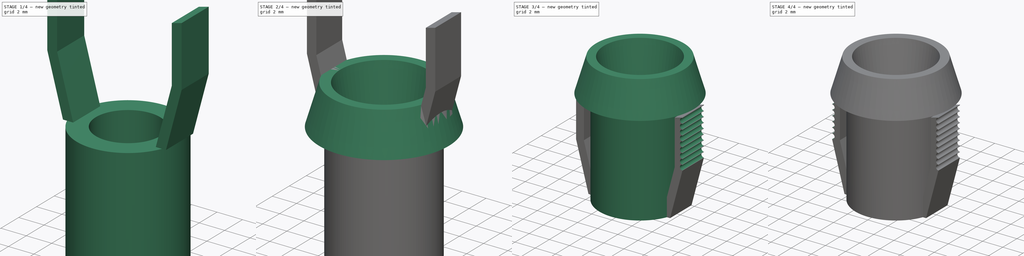
[diagram: build sequence overview — one tinted view per stage of 4, left to right]
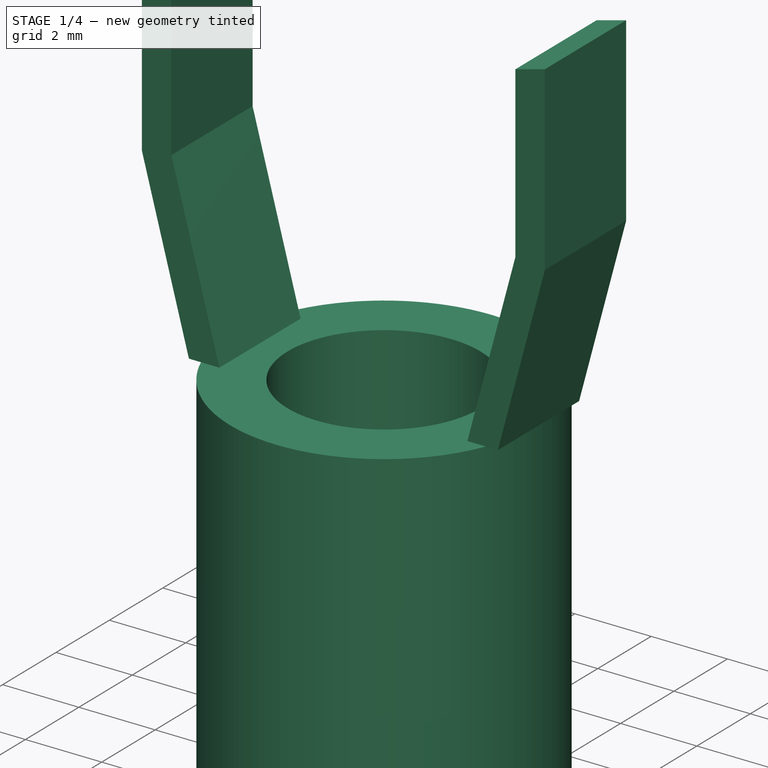
[diagram: stage 1 of 4 — iso view after this stage's code; geometry added in this stage tinted green]
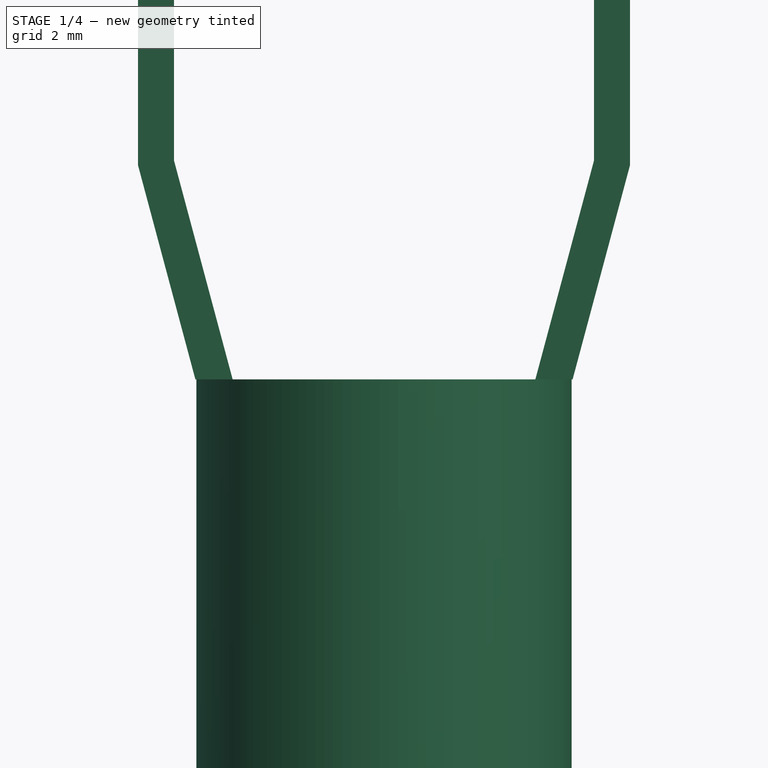
[diagram: stage 1 of 4 — front view after this stage's code; geometry added in this stage tinted green]
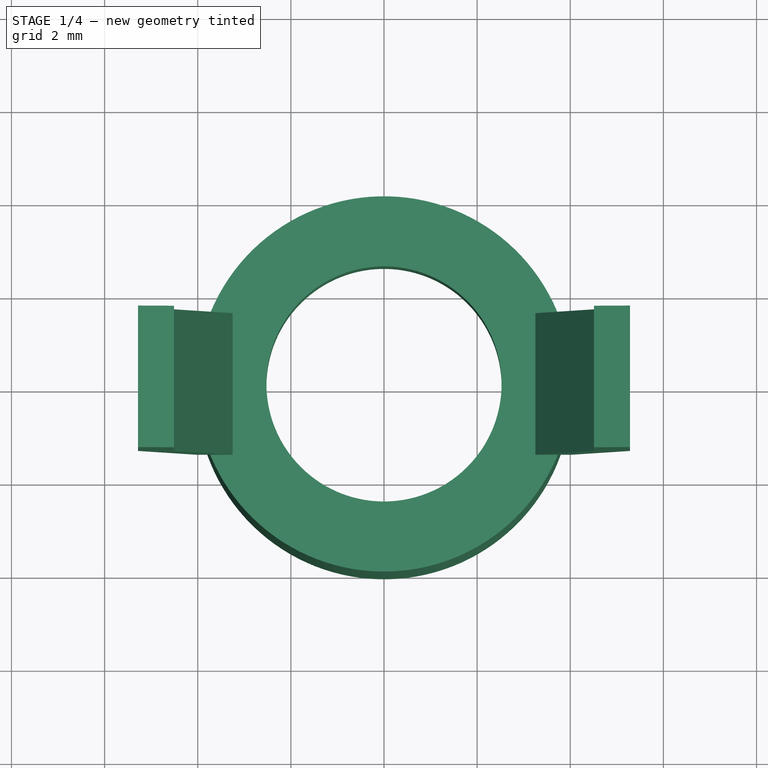
[diagram: stage 1 of 4 — top view after this stage's code; geometry added in this stage tinted green]
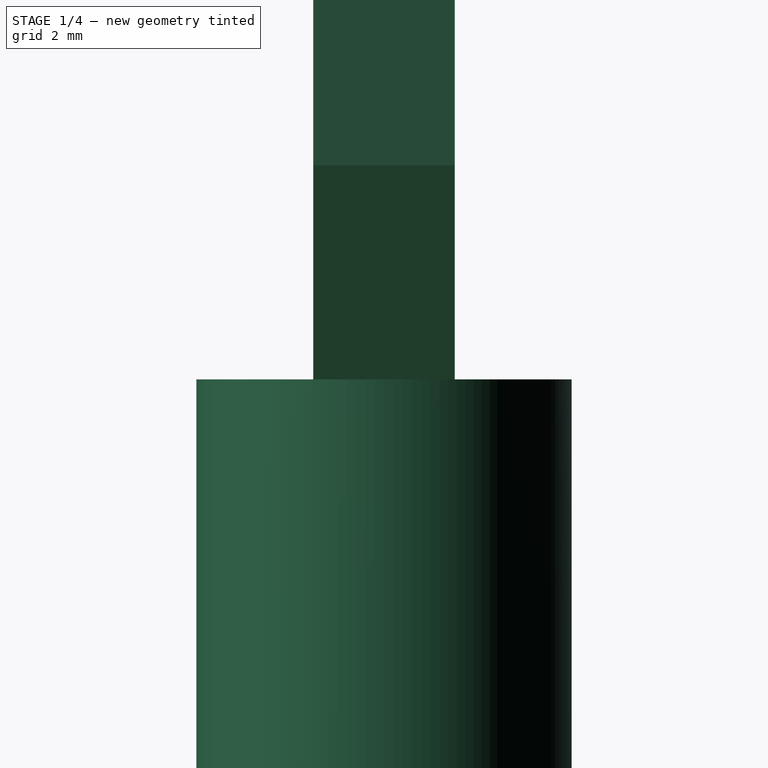
[diagram: stage 1 of 4 — right view after this stage's code; geometry added in this stage tinted green]
FCSTD DOCUMENT  (FreeCAD 0.15R4671 (Git))
Label: LED_holder_escalón
License: All rights reserved
LicenseURL: http://en.wikipedia.org/wiki/All_rights_reserved
objects: Sketcher::SketchObject×11, Part::MultiFuse×3, Part::Loft×2, Part::Sweep×2, PartDesign::Pocket×2, PartDesign::LinearPattern×2, Part::Cut×1, PartDesign::Revolution×1
note: 27 computed .brp shape members not serialized (recipe doc carries the construction recipe); baked Part::Feature solids carry a one-line shape summary decoded from their .brp

FEATURE [Sketcher::SketchObject] Sketch004
  Placement = pos=(0,0,0) rot=(1,0,0;1.5708rad)
  sketch-geometry (6):
    g0: LineSegment StartX=2.525 StartY=0 StartZ=0 EndX=4.03 EndY=0 EndZ=0
    g1: LineSegment StartX=4.03 StartY=0 StartZ=0 EndX=4.03 EndY=-9.55 EndZ=0
    g2: LineSegment StartX=4.03 StartY=-9.55 StartZ=0 EndX=3.23 EndY=-9.55 EndZ=0
    g3: LineSegment StartX=3.23 StartY=-9.55 StartZ=0 EndX=3.23 EndY=-3.17 EndZ=0
    g4: LineSegment StartX=3.23 StartY=-3.17 StartZ=0 EndX=2.525 EndY=-3.17 EndZ=0
    g5: LineSegment StartX=2.525 StartY=-3.17 StartZ=0 EndX=2.525 EndY=0 EndZ=0
  constraints (18):
    c: Coincident(g0,g1)
    c: Coincident(g1,g2)
    c: Horizontal(g0)
    c: Horizontal(g2)
    c: Vertical(g1)
    c: DistanceY(g1) = -9.55
    c: DistanceX(g2) = -0.8
    c: DistanceX(g-1,g1) = 4.03
    c: Coincident(g2,g3)
    c: Vertical(g3)
    c: Coincident(g3,g4)
    c: Horizontal(g4)
    c: Coincident(g4,g5)
    c: Coincident(g5,g0)
    c: Vertical(g5)
    c: DistanceY(g3) = 6.38
    c: DistanceX(g-1,g0) = 2.525
    c: PointOnObject(g0,g-1)
FEATURE [PartDesign::Revolution] Revolution
  Angle = 360
  Axis = (0,0,1)
  Base = (0,0,0)
  Placement = pos=(0,0,0) rot=(1,0,0;1.5708rad)
  ReferenceAxis = -> Sketch004 [V_Axis]
  Reversed = true
  Sketch = -> Sketch004
FEATURE [Sketcher::SketchObject] Sketch005  label="Sketch_trayectoria"
  Placement = pos=(0,0,0) rot=(-1,0,0;4.71239rad)
  sketch-geometry (2):
    g0: LineSegment StartX=3.65 StartY=0 StartZ=0 EndX=4.89596 EndY=4.65 EndZ=0
    g1: LineSegment StartX=4.89596 StartY=4.65 StartZ=0 EndX=4.89596 EndY=9.25 EndZ=0
  constraints (7):
    c: PointOnObject(g0,g-1)
    c: Coincident(g0,g1)
    c: Vertical(g1)
    c: Angle(g0,g-1) = 1.8326
    c: DistanceY(g0) = 4.65
    c: DistanceX(g-1,g0) = 3.65
    c: DistanceY(g1) = 4.6
FEATURE [Sketcher::SketchObject] Sketch006  label="Sketch_sección"
  sketch-geometry (4):
    g0: LineSegment StartX=3.25 StartY=1.52 StartZ=0 EndX=4.05 EndY=1.52 EndZ=0
    g1: LineSegment StartX=4.05 StartY=1.52 StartZ=0 EndX=4.05 EndY=-1.52 EndZ=0
    g2: LineSegment StartX=4.05 StartY=-1.52 StartZ=0 EndX=3.25 EndY=-1.52 EndZ=0
    g3: LineSegment StartX=3.25 StartY=-1.52 StartZ=0 EndX=3.25 EndY=1.52 EndZ=0
  constraints (12):
    c: Coincident(g0,g1)
    c: Coincident(g1,g2)
    c: Coincident(g2,g3)
    c: Coincident(g3,g0)
    c: Horizontal(g0)
    c: Horizontal(g2)
    c: Vertical(g1)
    c: Vertical(g3)
    c: Symmetric(g0,g2,g-1)
    c: DistanceY(g1) = -3.04
    c: DistanceX(g0) = 0.8
    c: DistanceX(g-1,g0) = 3.25
FEATURE [Part::Sweep] Sweep
  Frenet = false
  Sections = -> [Sketch006]
  Solid = true
  Spine = -> Sketch005 [Edge1,Edge2]
  Transition = 1
FEATURE [Sketcher::SketchObject] Sketch008  label="Sketch_trayectoria001"
  Placement = pos=(0,0,0) rot=(-1,0,0;4.71239rad)
  sketch-geometry (2):
    g0: LineSegment StartX=-3.65 StartY=0 StartZ=0 EndX=-4.89596 EndY=4.65 EndZ=0
    g1: LineSegment StartX=-4.89596 StartY=4.65 StartZ=0 EndX=-4.89596 EndY=9.25 EndZ=0
  constraints (7):
    c: PointOnObject(g0,g-1)
    c: Coincident(g0,g1)
    c: Vertical(g1)
    c: Angle(g-1,g0) = 1.8326
    c: DistanceX(g-1,g0) = -3.65
    c: DistanceY(g0) = 4.65
    c: DistanceY(g1) = 4.6
FEATURE [Sketcher::SketchObject] Sketch009  label="Sketch_sección001"
  sketch-geometry (4):
    g0: LineSegment StartX=-4.05 StartY=1.52 StartZ=0 EndX=-3.25 EndY=1.52 EndZ=0
    g1: LineSegment StartX=-3.25 StartY=1.52 StartZ=0 EndX=-3.25 EndY=-1.52 EndZ=0
    g2: LineSegment StartX=-3.25 StartY=-1.52 StartZ=0 EndX=-4.05 EndY=-1.52 EndZ=0
    g3: LineSegment StartX=-4.05 StartY=-1.52 StartZ=0 EndX=-4.05 EndY=1.52 EndZ=0
  constraints (12):
    c: Coincident(g0,g1)
    c: Coincident(g1,g2)
    c: Coincident(g2,g3)
    c: Coincident(g3,g0)
    c: Horizontal(g0)
    c: Horizontal(g2)
    c: Vertical(g1)
    c: Vertical(g3)
    c: Symmetric(g0,g1,g-1)
    c: DistanceX(g0) = 0.8
    c: DistanceY(g3) = 3.04
    c: DistanceX(g-1,g0) = -3.25
FEATURE [Part::Sweep] Sweep001
  Frenet = false
  Sections = -> [Sketch009]
  Solid = true
  Spine = -> Sketch008 [Edge1,Edge2]
  Transition = 1
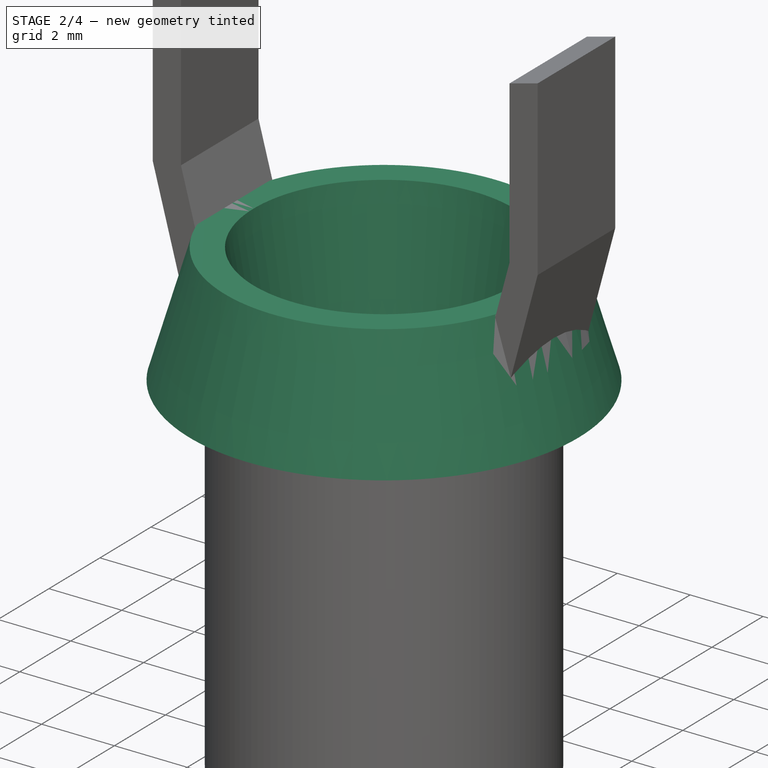
[diagram: stage 2 of 4 — iso view after this stage's code; geometry added in this stage tinted green]
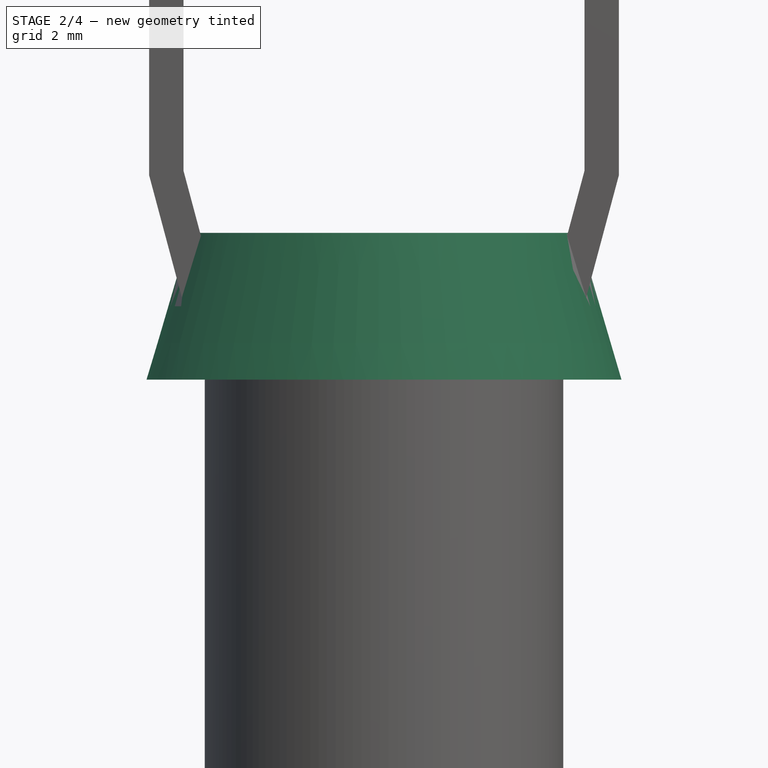
[diagram: stage 2 of 4 — front view after this stage's code; geometry added in this stage tinted green]
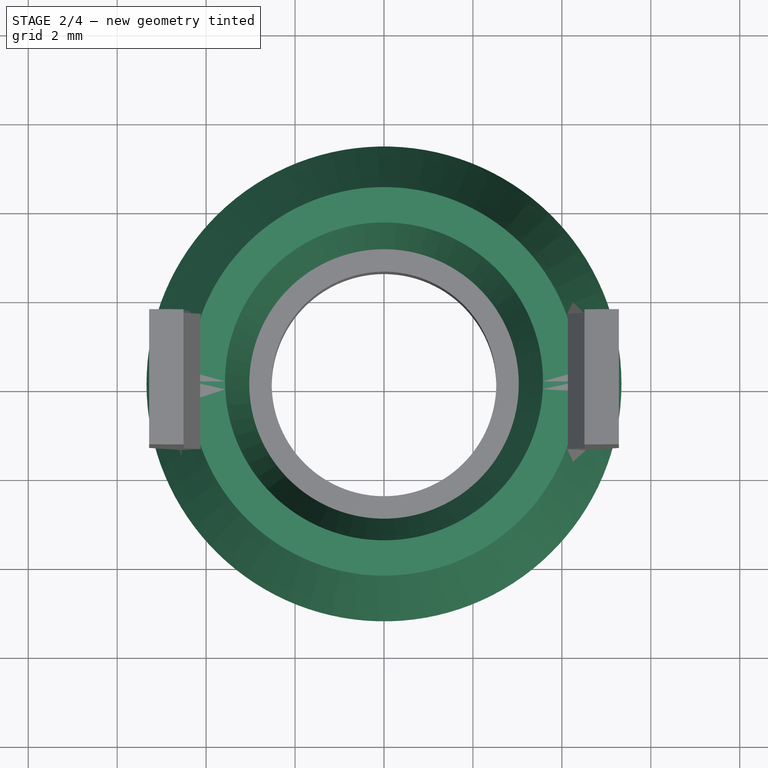
[diagram: stage 2 of 4 — top view after this stage's code; geometry added in this stage tinted green]
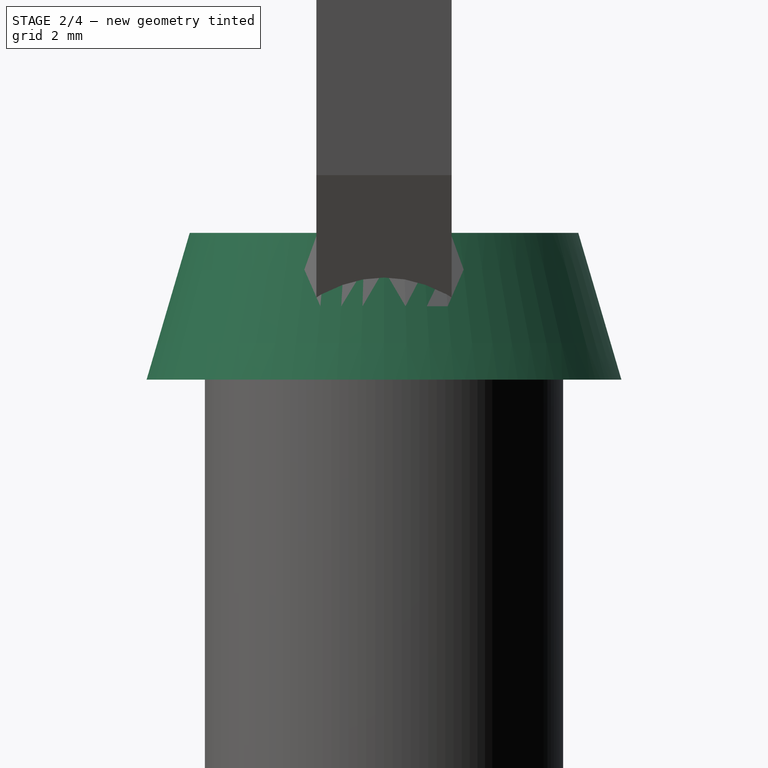
[diagram: stage 2 of 4 — right view after this stage's code; geometry added in this stage tinted green]
FEATURE [Sketcher::SketchObject] Sketch  label="aro_inferior"
  sketch-geometry (1):
    g0: Circle CenterX=0 CenterY=0 CenterZ=0 NormalX=0 NormalY=0 NormalZ=1 Radius=5.34
  constraints (2):
    c: Coincident(g0,g-1)
    c: Radius(g0) = 5.34
FEATURE [Sketcher::SketchObject] Sketch001  label="aro_superior"
  Placement = pos=(0,0,3.3) rot=(0,0,1;0rad)
  sketch-geometry (1):
    g0: Circle CenterX=0 CenterY=0 CenterZ=0 NormalX=0 NormalY=0 NormalZ=1 Radius=4.37
  constraints (2):
    c: Coincident(g0,g-1)
    c: Radius(g0) = 4.37
FEATURE [Part::Loft] Loft
  Closed = false
  Ruled = false
  Sections = -> [Sketch,Sketch001]
  Solid = true
FEATURE [Sketcher::SketchObject] Sketch002  label="aro_inferior_interno"
  sketch-geometry (1):
    g0: Circle CenterX=0 CenterY=0 CenterZ=0 NormalX=0 NormalY=0 NormalZ=1 Radius=3.03
  constraints (2):
    c: Coincident(g0,g-1)
    c: Radius(g0) = 3.03
FEATURE [Sketcher::SketchObject] Sketch003  label="aro_superior_interior"
  Placement = pos=(0,0,3.3) rot=(0,0,1;0rad)
  sketch-geometry (1):
    g0: Circle CenterX=0 CenterY=0 CenterZ=0 NormalX=0 NormalY=0 NormalZ=1 Radius=3.575
  constraints (2):
    c: Coincident(g0,g-1)
    c: Radius(g0) = 3.575
FEATURE [Part::Loft] Loft001
  Closed = false
  Ruled = false
  Sections = -> [Sketch002,Sketch003]
  Solid = true
FEATURE [Part::Cut] Cut
  Base = -> Loft
  Tool = -> Loft001
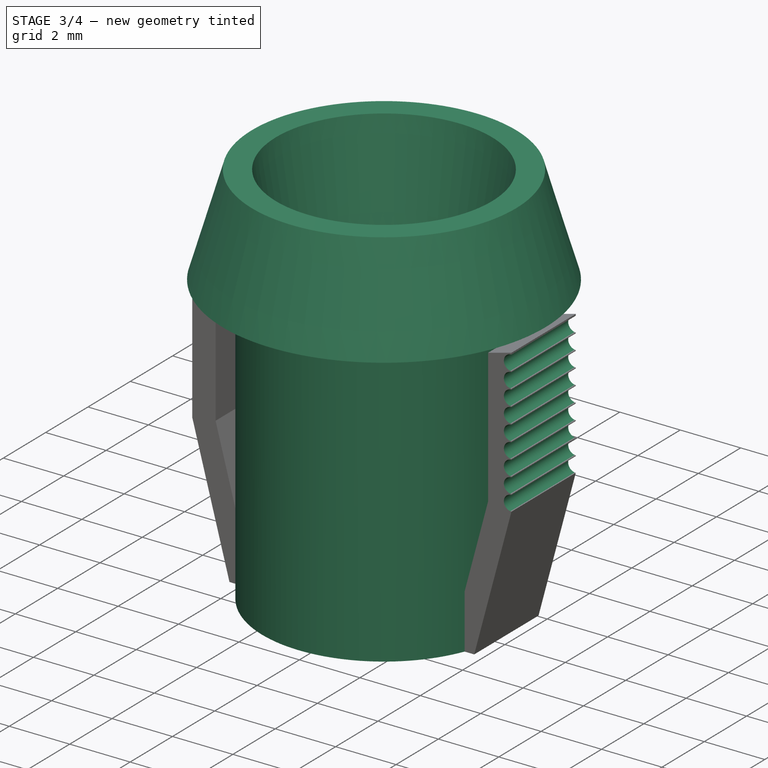
[diagram: stage 3 of 4 — iso view after this stage's code; geometry added in this stage tinted green]
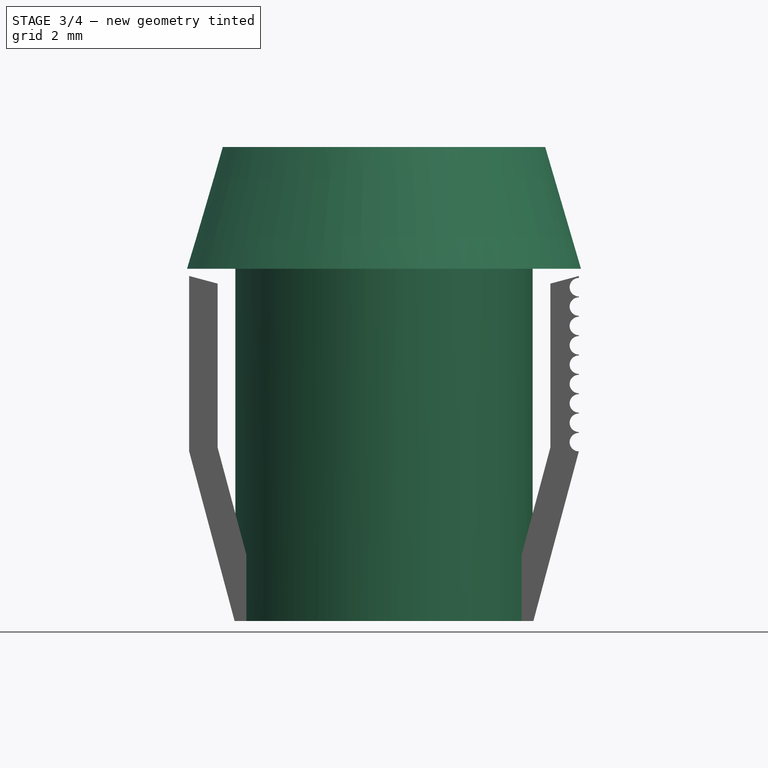
[diagram: stage 3 of 4 — front view after this stage's code; geometry added in this stage tinted green]
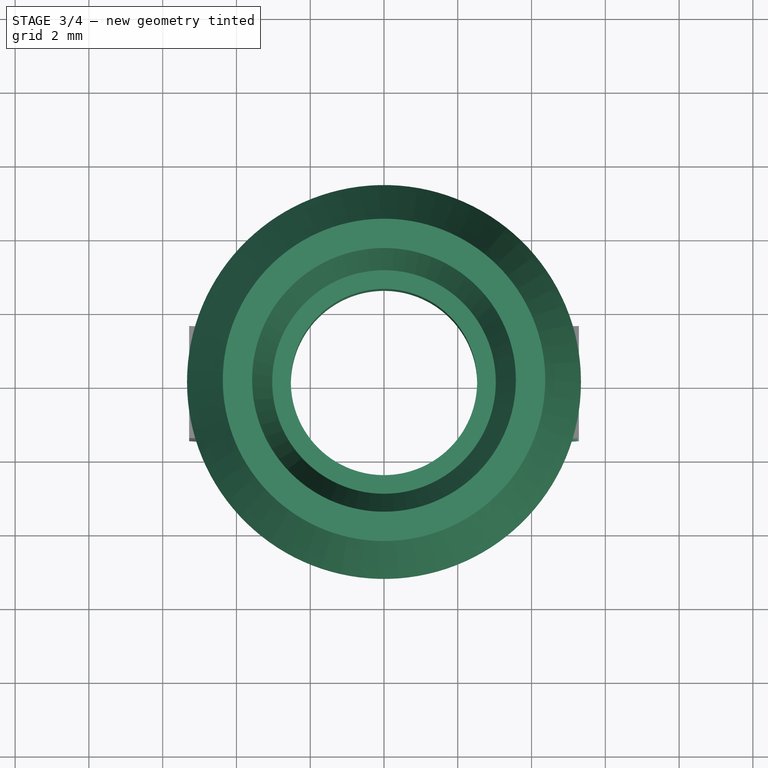
[diagram: stage 3 of 4 — top view after this stage's code; geometry added in this stage tinted green]
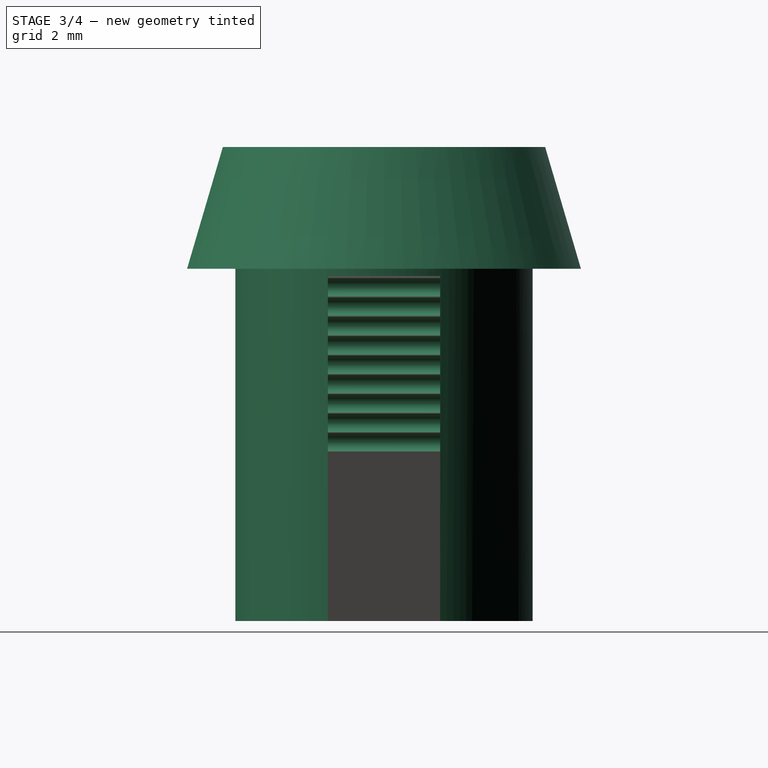
[diagram: stage 3 of 4 — right view after this stage's code; geometry added in this stage tinted green]
FEATURE [Part::MultiFuse] Fusion
  Placement = pos=(0,0,9.55) rot=(0,0,1;0rad)
  Shapes = -> [Cut,Revolution]
FEATURE [Part::MultiFuse] Fusion001
  Shapes = -> [Sweep,Fusion]
FEATURE [Sketcher::SketchObject] Sketch007
  ExternalGeometry = -> [Fusion001]
  Placement = pos=(0,-1.52,0) rot=(1,0,0;1.5708rad)
  Support = -> Fusion001 [Face16]
  sketch-geometry (1):
    g0: Circle CenterX=5.28233 CenterY=4.84913 CenterZ=0 NormalX=0 NormalY=0 NormalZ=1 Radius=0.25
  constraints (3):
    c: PointOnObject(g0,g-3)
    c: Radius(g0) = 0.25
    c: PointOnObject(g-3,g0)
FEATURE [PartDesign::Pocket] Pocket
  Length = 5
  Sketch = -> Sketch007
  Type = 0
FEATURE [PartDesign::LinearPattern] LinearPattern
  Direction = -> Sketch007 [V_Axis]
  Length = 4.2
  Occurrences = 9
  Originals = -> [Pocket]
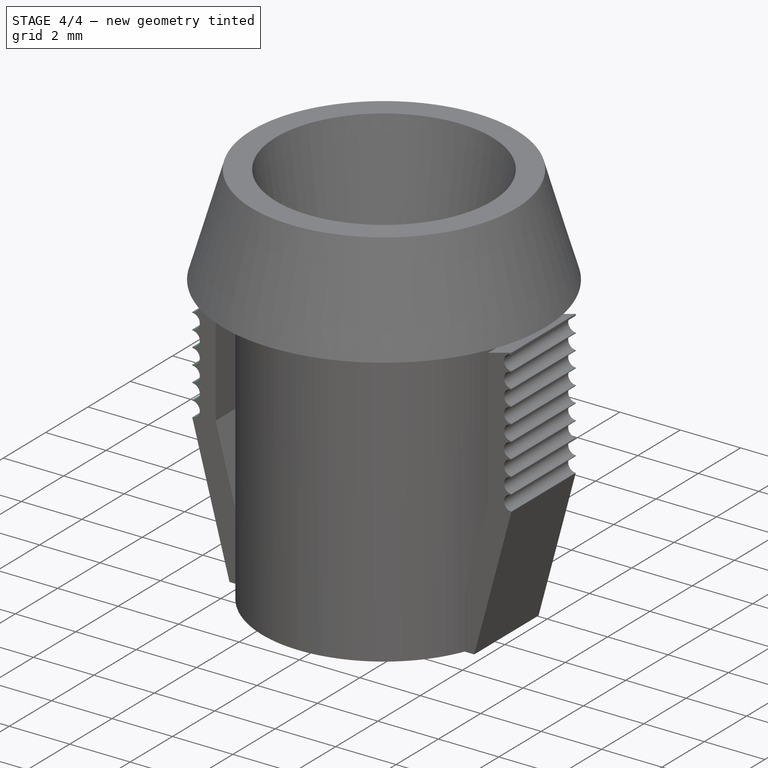
[diagram: stage 4 of 4 — iso view after this stage's code; geometry added in this stage tinted green]
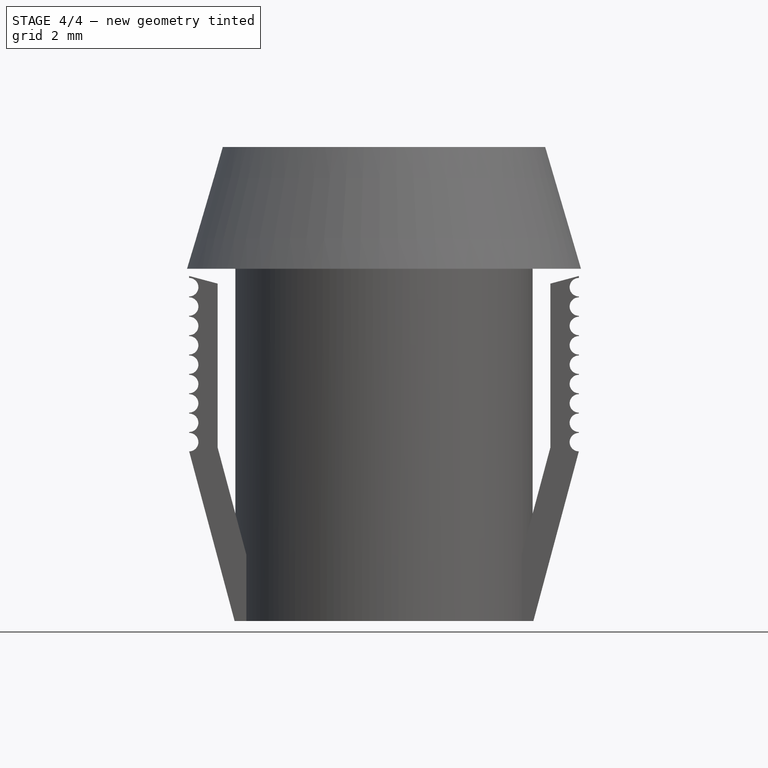
[diagram: stage 4 of 4 — front view after this stage's code; geometry added in this stage tinted green]
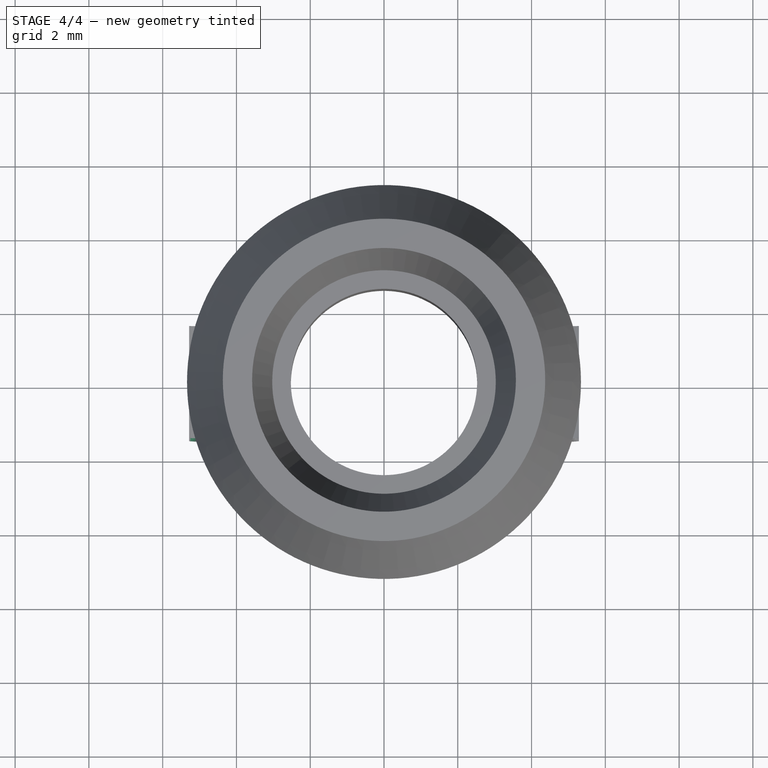
[diagram: stage 4 of 4 — top view after this stage's code; geometry added in this stage tinted green]
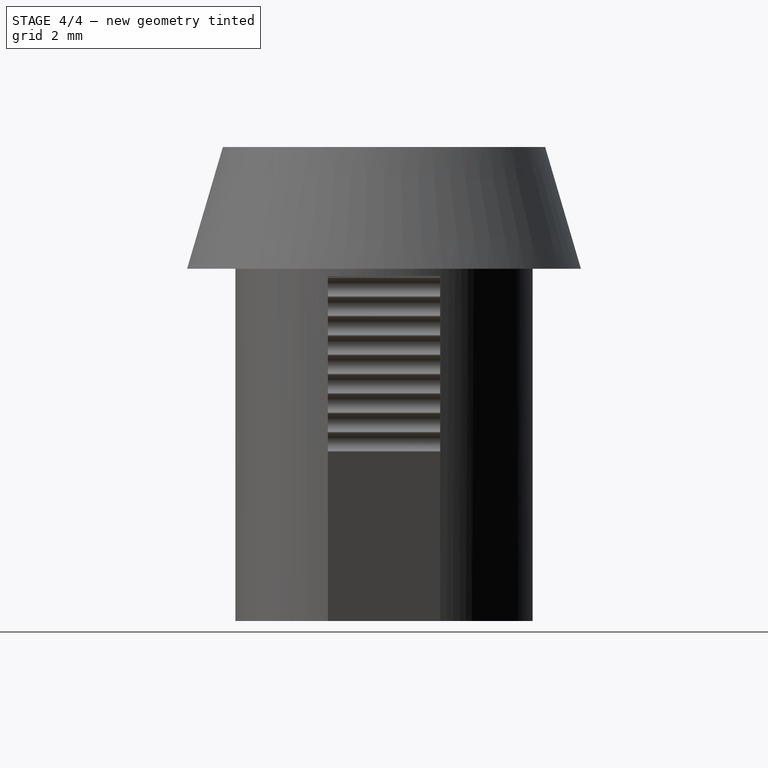
[diagram: stage 4 of 4 — right view after this stage's code; geometry added in this stage tinted green]
FEATURE [Part::MultiFuse] Fusion002
  Shapes = -> [Sweep001,LinearPattern]
FEATURE [Sketcher::SketchObject] Sketch010
  ExternalGeometry = -> [Fusion002]
  Placement = pos=(0,-1.52,0) rot=(1,0,0;1.5708rad)
  Support = -> Fusion002 [Face39]
  sketch-geometry (1):
    g0: Circle CenterX=-5.28233 CenterY=4.84913 CenterZ=0 NormalX=0 NormalY=0 NormalZ=1 Radius=0.25
  constraints (3):
    c: PointOnObject(g0,g-3)
    c: Radius(g0) = 0.25
    c: PointOnObject(g-3,g0)
FEATURE [PartDesign::Pocket] Pocket001
  Length = 5
  Sketch = -> Sketch010
  Type = 0
FEATURE [PartDesign::LinearPattern] LinearPattern001
  Direction = -> Sketch010 [V_Axis]
  Length = 4.2
  Occurrences = 9
  Originals = -> [Pocket001]
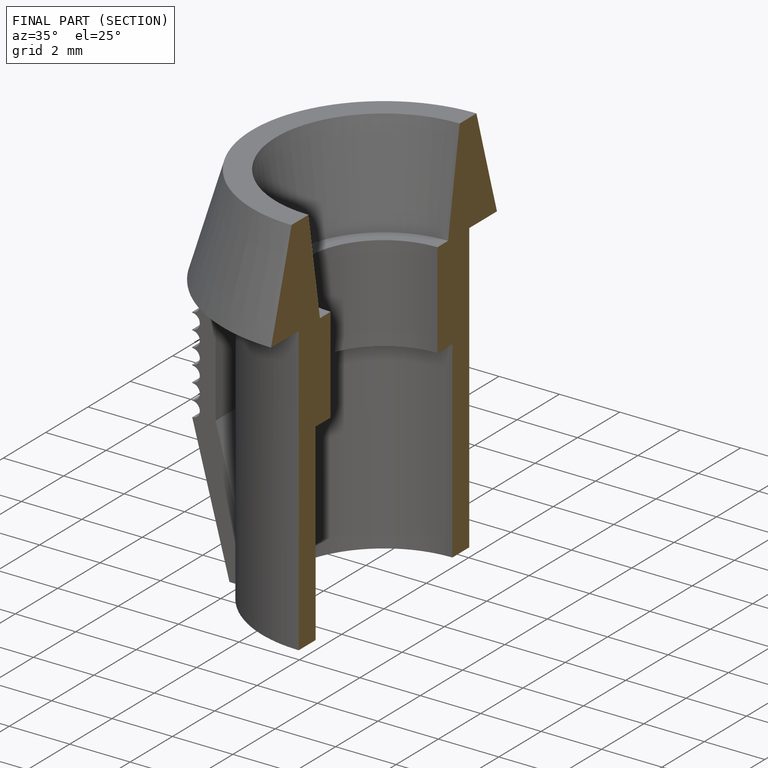
[diagram: finished part — half-section view (interior)]
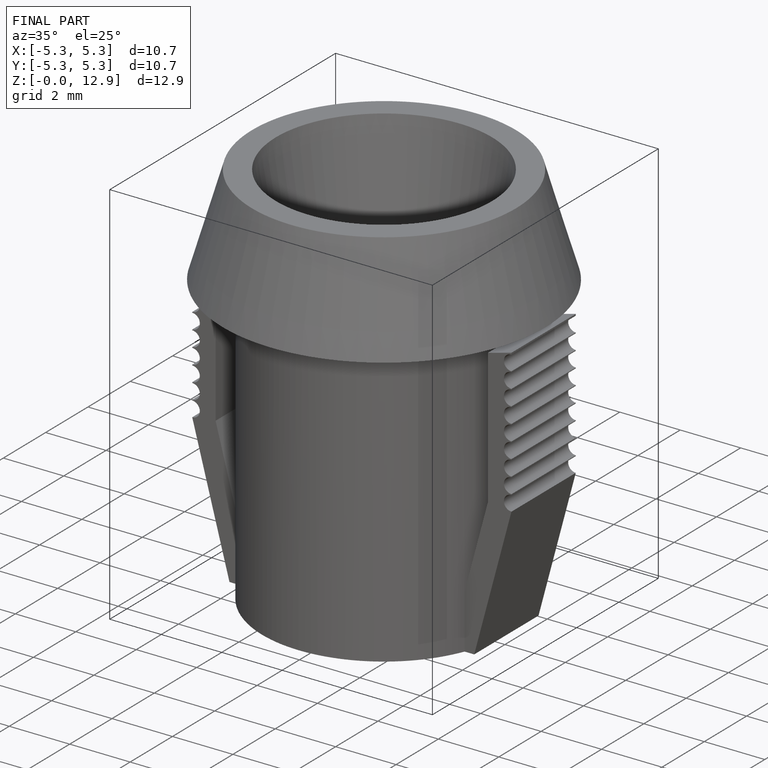
[diagram: finished part — iso view with bounding-box wireframe]
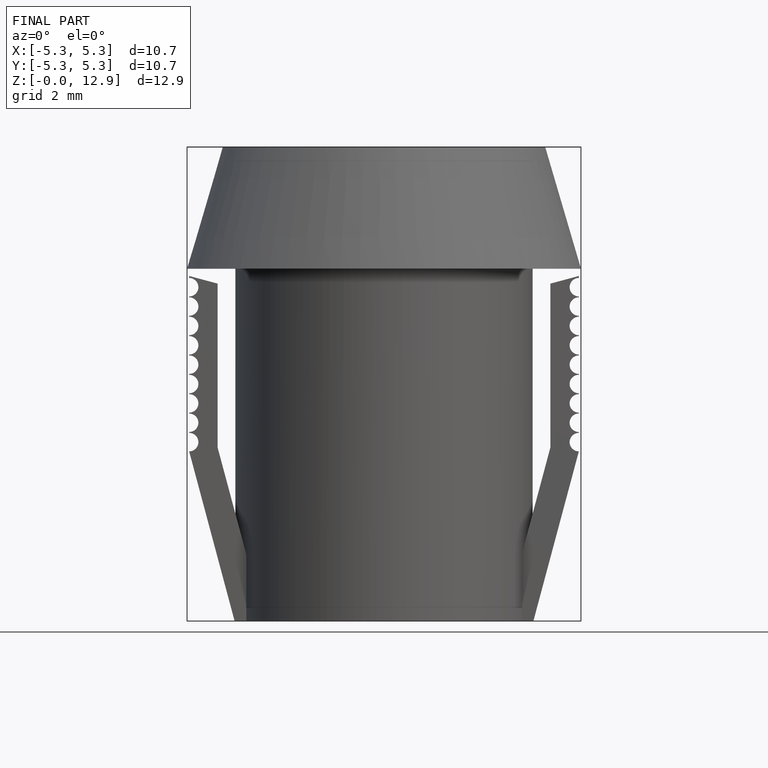
[diagram: finished part — front view with bounding-box wireframe]
